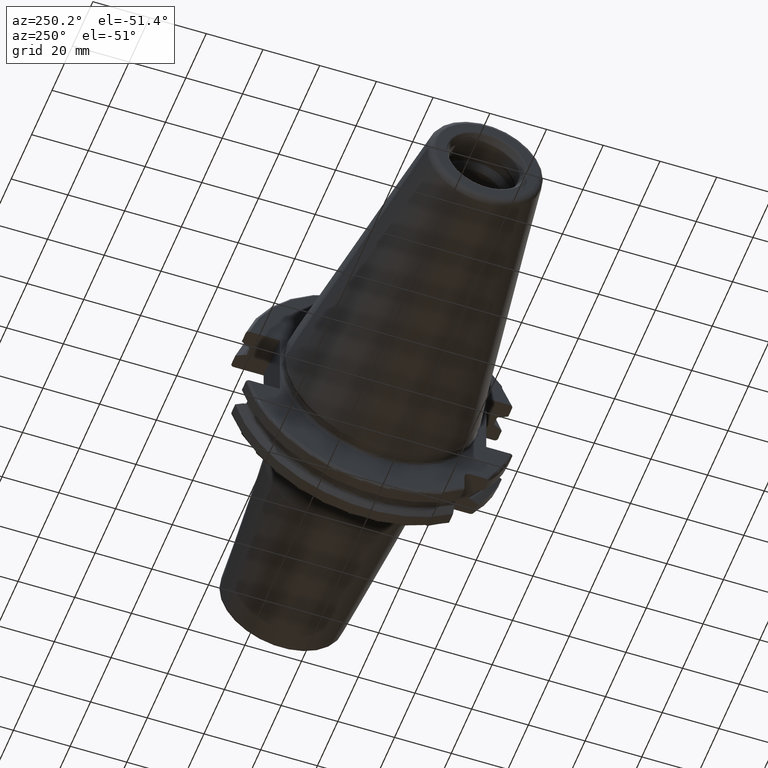
[diagram: clean part render]
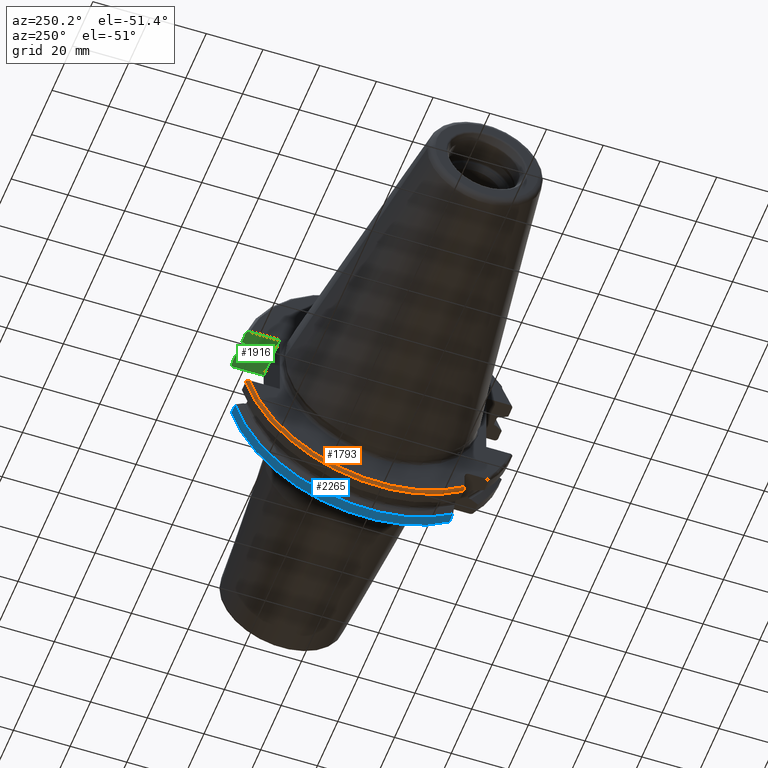
[diagram: same view with three faces highlighted in distinct colors, each labeled with its STEP entity id]
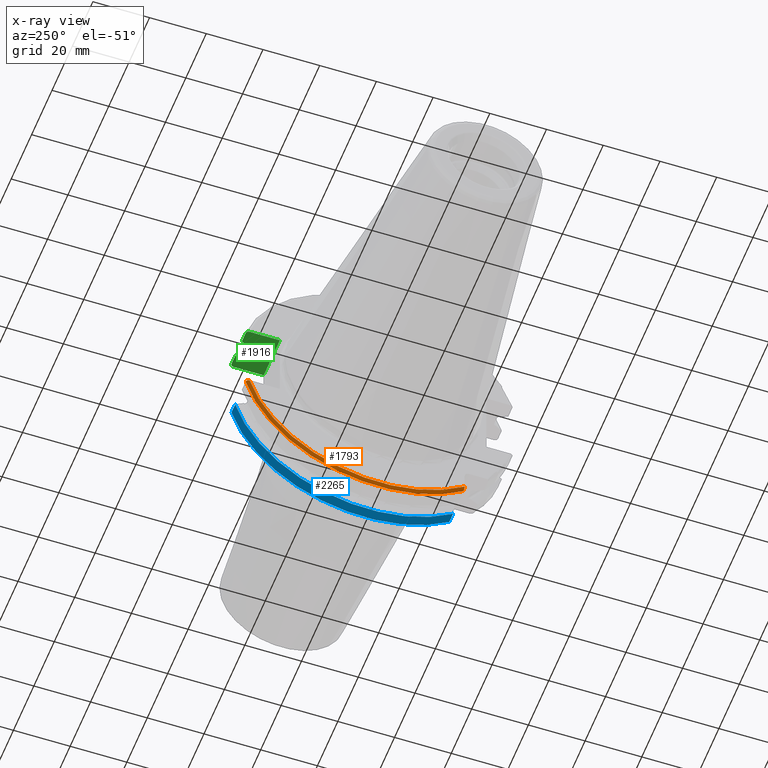
[diagram: x-ray of the same camera — body ghosted, the three highlighted faces saturated]
A machine part, auxiliary view with three faces highlighted in distinct colors.
The next image is the same camera in x-ray (body ghosted, the three faces saturated) — at least one of them is partly hidden behind the body in this view.
Their STEP definitions:

[orange] entity #1793 — the highlighted toroidal blend (fillet) surface has major radius 47.7375 mm and minor (blend) radius 1 mm.
#190=CARTESIAN_POINT('',(3.2E0,0.E0,0.E0));
#191=DIRECTION('',(-1.E0,0.E0,0.E0));
#192=DIRECTION('',(0.E0,9.627964123359E-1,-2.702278083268E-1));
#193=AXIS2_PLACEMENT_3D('',#190,#191,#192);
#237=CARTESIAN_POINT('',(3.2E0,4.596149373389E1,-1.29E1));
#238=CARTESIAN_POINT('',(3.2E0,4.604026443227E1,-1.29E1));
#239=CARTESIAN_POINT('',(3.216813255287E0,4.619328239852E1,-1.29E1));
#240=CARTESIAN_POINT('',(3.290538328370E0,4.641376542139E1,-1.29E1));
#241=CARTESIAN_POINT('',(3.409705660893E0,4.661163928454E1,-1.29E1));
#242=CARTESIAN_POINT('',(3.568375595419E0,4.677744698912E1,-1.29E1));
#243=CARTESIAN_POINT('',(3.759602935675E0,4.690321007119E1,-1.29E1));
#244=CARTESIAN_POINT('',(3.974378910530E0,4.698149887214E1,-1.29E1));
#245=CARTESIAN_POINT('',(4.123284460641E0,4.699929686974E1,-1.29E1));
#246=CARTESIAN_POINT('',(4.2E0,4.699929686974E1,-1.29E1));
#248=CARTESIAN_POINT('',(4.2E0,-2.985E1,-3.852689198793E1));
#249=CARTESIAN_POINT('',(4.121351701574E0,-2.985E1,-3.852689198793E1));
#250=CARTESIAN_POINT('',(3.966904735014E0,-2.985E1,-3.850408165447E1));
#251=CARTESIAN_POINT('',(3.738653969764E0,-2.985E1,-3.839864952437E1));
#252=CARTESIAN_POINT('',(3.529185168070E0,-2.985E1,-3.821837887996E1));
#253=CARTESIAN_POINT('',(3.352580918325E0,-2.985E1,-3.796237987635E1));
#254=CARTESIAN_POINT('',(3.229812788304E0,-2.985E1,-3.762998844337E1));
#255=CARTESIAN_POINT('',(3.2E0,-2.985E1,-3.738468079689E1));
#256=CARTESIAN_POINT('',(3.2E0,-2.985E1,-3.725381062724E1));
#258=CARTESIAN_POINT('',(4.2E0,0.E0,0.E0));
#259=DIRECTION('',(-1.E0,0.E0,0.E0));
#260=DIRECTION('',(0.E0,9.643354064066E-1,-2.646832521159E-1));
#261=AXIS2_PLACEMENT_3D('',#258,#259,#260);
#1362=CARTESIAN_POINT('',(3.2E0,4.596149373389E1,-1.29E1));
#1363=VERTEX_POINT('',#1362);
#1372=CARTESIAN_POINT('',(4.2E0,4.699929686974E1,-1.29E1));
#1373=VERTEX_POINT('',#1372);
#1401=CARTESIAN_POINT('',(4.2E0,-2.985E1,-3.852689198793E1));
#1402=VERTEX_POINT('',#1401);
#1403=CARTESIAN_POINT('',(3.2E0,-2.985E1,-3.725381062724E1));
#1404=VERTEX_POINT('',#1403);
#1780=CARTESIAN_POINT('',(4.2E0,0.E0,0.E0));
#1781=DIRECTION('',(1.E0,0.E0,0.E0));
#1782=DIRECTION('',(0.E0,-1.E0,0.E0));
#1783=AXIS2_PLACEMENT_3D('',#1780,#1781,#1782);
#1784=TOROIDAL_SURFACE('',#1783,4.77375E1,1.E0);
#1786=ORIENTED_EDGE('',*,*,#1785,.F.);
#1787=ORIENTED_EDGE('',*,*,#1723,.T.);
#1788=ORIENTED_EDGE('',*,*,#1693,.F.);
#1790=ORIENTED_EDGE('',*,*,#1789,.F.);
#1791=EDGE_LOOP('',(#1786,#1787,#1788,#1790));
#1792=FACE_OUTER_BOUND('',#1791,.F.);
#1793=ADVANCED_FACE('',(#1792),#1784,.T.);
#194=CIRCLE('',#193,4.77375E1);
#247=B_SPLINE_CURVE_WITH_KNOTS('',3,(#237,#238,#239,#240,#241,#242,#243,#244,
#245,#246),.UNSPECIFIED.,.F.,.F.,(4,1,1,1,1,1,1,4),(0.E0,1.428571428571E-1,
2.857142857143E-1,4.285714285714E-1,5.714285714286E-1,7.142857142857E-1,
8.571428571429E-1,1.E0),.UNSPECIFIED.);
#257=B_SPLINE_CURVE_WITH_KNOTS('',3,(#248,#249,#250,#251,#252,#253,#254,#255,
#256),.UNSPECIFIED.,.F.,.F.,(4,1,1,1,1,1,4),(0.E0,1.666666666667E-1,
3.333333333333E-1,5.E-1,6.666666666667E-1,8.333333333333E-1,1.E0),
.UNSPECIFIED.);
#262=CIRCLE('',#261,4.87375E1);
#1693=EDGE_CURVE('',#1402,#1404,#257,.T.);
#1723=EDGE_CURVE('',#1363,#1404,#194,.T.);
#1785=EDGE_CURVE('',#1363,#1373,#247,.T.);
#1789=EDGE_CURVE('',#1373,#1402,#262,.T.);

[blue] entity #2265 — the highlighted cylindrical surface (partial cylindrical patch) has radius 48.7375 mm, axis along (1, 0, 0).
#736=DIRECTION('',(1.E0,0.E0,0.E0));
#737=VECTOR('',#736,3.634621614173E0);
#738=CARTESIAN_POINT('',(1.441537838583E1,4.699929686974E1,-1.29E1));
#739=LINE('',#738,#737);
#740=CARTESIAN_POINT('',(1.441537838583E1,0.E0,0.E0));
#741=DIRECTION('',(1.E0,0.E0,0.E0));
#742=DIRECTION('',(0.E0,-6.124647345473E-1,-7.904979120376E-1));
#743=AXIS2_PLACEMENT_3D('',#740,#741,#742);
#745=DIRECTION('',(1.E0,0.E0,0.E0));
#746=VECTOR('',#745,3.634621614173E0);
#747=CARTESIAN_POINT('',(1.441537838583E1,-2.985E1,-3.852689198793E1));
#748=LINE('',#747,#746);
#749=CARTESIAN_POINT('',(1.805E1,0.E0,0.E0));
#750=DIRECTION('',(-1.E0,0.E0,0.E0));
#751=DIRECTION('',(0.E0,9.643354064066E-1,-2.646832521159E-1));
#752=AXIS2_PLACEMENT_3D('',#749,#750,#751);
#790=CARTESIAN_POINT('',(1.441537838583E1,4.699929686974E1,-1.29E1));
#802=CARTESIAN_POINT('',(1.441537838583E1,-2.985E1,-3.852689198793E1));
#1324=VERTEX_POINT('',#790);
#1374=CARTESIAN_POINT('',(1.805E1,4.699929686974E1,-1.29E1));
#1375=VERTEX_POINT('',#1374);
#1399=CARTESIAN_POINT('',(1.805E1,-2.985E1,-3.852689198793E1));
#1400=VERTEX_POINT('',#1399);
#1424=VERTEX_POINT('',#802);
#2252=CARTESIAN_POINT('',(-1.076325E2,0.E0,0.E0));
#2253=DIRECTION('',(1.E0,0.E0,0.E0));
#2254=DIRECTION('',(0.E0,-1.E0,0.E0));
#2255=AXIS2_PLACEMENT_3D('',#2252,#2253,#2254);
#2256=CYLINDRICAL_SURFACE('',#2255,4.87375E1);
#2257=ORIENTED_EDGE('',*,*,#1825,.F.);
#2259=ORIENTED_EDGE('',*,*,#2258,.F.);
#2260=ORIENTED_EDGE('',*,*,#1675,.T.);
#2262=ORIENTED_EDGE('',*,*,#2261,.F.);
#2263=EDGE_LOOP('',(#2257,#2259,#2260,#2262));
#2264=FACE_OUTER_BOUND('',#2263,.F.);
#2265=ADVANCED_FACE('',(#2264),#2256,.T.);
#744=CIRCLE('',#743,4.87375E1);
#753=CIRCLE('',#752,4.87375E1);
#1675=EDGE_CURVE('',#1424,#1400,#748,.T.);
#1825=EDGE_CURVE('',#1324,#1375,#739,.T.);
#2258=EDGE_CURVE('',#1424,#1324,#744,.T.);
#2261=EDGE_CURVE('',#1375,#1400,#753,.T.);

[green] entity #1916 — the highlighted planar face has unit normal (0, 0, 1).
#122=DIRECTION('',(-1.E0,0.E0,0.E0));
#123=VECTOR('',#122,1.585E1);
#124=CARTESIAN_POINT('',(1.905E1,3.53E1,1.29E1));
#125=LINE('',#124,#123);
#146=DIRECTION('',(0.E0,-1.E0,0.E0));
#147=VECTOR('',#146,1.066149373389E1);
#148=CARTESIAN_POINT('',(1.905E1,4.596149373389E1,1.29E1));
#149=LINE('',#148,#147);
#207=DIRECTION('',(0.E0,-1.E0,0.E0));
#208=VECTOR('',#207,1.066149373389E1);
#209=CARTESIAN_POINT('',(3.2E0,4.596149373389E1,1.29E1));
#210=LINE('',#209,#208);
#294=DIRECTION('',(0.E0,-1.E0,0.E0));
#295=VECTOR('',#294,1.952643655423E-1);
#296=CARTESIAN_POINT('',(9.2625E0,4.460981716077E1,1.29E1));
#297=LINE('',#296,#295);
#333=CARTESIAN_POINT('',(7.934621614173E0,4.699929686974E1,1.29E1));
#334=CARTESIAN_POINT('',(8.085480915039E0,4.672833723043E1,1.29E1));
#335=CARTESIAN_POINT('',(8.384988643814E0,4.619006057422E1,1.29E1));
#336=CARTESIAN_POINT('',(8.827579780447E0,4.539363402665E1,1.29E1));
#337=CARTESIAN_POINT('',(9.118260754177E0,4.486988275438E1,1.29E1));
#338=CARTESIAN_POINT('',(9.2625E0,4.460981716077E1,1.29E1));
#351=CARTESIAN_POINT('',(1.00125E1,4.363301502303E1,1.29E1));
#352=CARTESIAN_POINT('',(9.954459038642E0,4.363301502303E1,1.29E1));
#353=CARTESIAN_POINT('',(9.841879456025E0,4.364663453854E1,1.29E1));
#354=CARTESIAN_POINT('',(9.679181789370E0,4.370688679607E1,1.29E1));
#355=CARTESIAN_POINT('',(9.535649484354E0,4.380290373946E1,1.29E1));
#356=CARTESIAN_POINT('',(9.417489807997E0,4.392837618076E1,1.29E1));
#357=CARTESIAN_POINT('',(9.329516551915E0,4.407649589532E1,1.29E1));
#358=CARTESIAN_POINT('',(9.274989387756E0,4.424117249764E1,1.29E1));
#359=CARTESIAN_POINT('',(9.2625E0,4.435562679308E1,1.29E1));
#360=CARTESIAN_POINT('',(9.2625E0,4.441455279523E1,1.29E1));
#378=DIRECTION('',(1.E0,0.E0,0.E0));
#379=VECTOR('',#378,2.325E0);
#380=CARTESIAN_POINT('',(1.00125E1,4.363301502303E1,1.29E1));
#381=LINE('',#380,#379);
#391=CARTESIAN_POINT('',(1.30875E1,4.441455279523E1,1.29E1));
#392=CARTESIAN_POINT('',(1.30875E1,4.435557140525E1,1.29E1));
#393=CARTESIAN_POINT('',(1.307499016648E1,4.424100688760E1,1.29E1));
#394=CARTESIAN_POINT('',(1.302032710232E1,4.407610890085E1,1.29E1));
#395=CARTESIAN_POINT('',(1.293214994527E1,4.392788522282E1,1.29E1));
#396=CARTESIAN_POINT('',(1.281390038390E1,4.380253784054E1,1.29E1));
#397=CARTESIAN_POINT('',(1.267050623563E1,4.370675082806E1,1.29E1));
#398=CARTESIAN_POINT('',(1.250801539042E1,4.364662320814E1,1.29E1));
#399=CARTESIAN_POINT('',(1.239551042481E1,4.363301502303E1,1.29E1));
#400=CARTESIAN_POINT('',(1.23375E1,4.363301502303E1,1.29E1));
#418=DIRECTION('',(0.E0,-1.E0,2.729156701685E-14));
#419=VECTOR('',#418,1.952643655423E-1);
#420=CARTESIAN_POINT('',(1.30875E1,4.460981716077E1,1.29E1));
#421=LINE('',#420,#419);
#457=CARTESIAN_POINT('',(1.441537838583E1,4.699929686974E1,1.29E1));
#458=CARTESIAN_POINT('',(1.426451908496E1,4.672833723043E1,1.29E1));
#459=CARTESIAN_POINT('',(1.396501135619E1,4.619006057422E1,1.29E1));
#460=CARTESIAN_POINT('',(1.352242021955E1,4.539363402665E1,1.29E1));
#461=CARTESIAN_POINT('',(1.323173924582E1,4.486988275438E1,1.29E1));
#462=CARTESIAN_POINT('',(1.30875E1,4.460981716077E1,1.29E1));
#476=DIRECTION('',(1.E0,0.E0,0.E0));
#477=VECTOR('',#476,3.734621614173E0);
#478=CARTESIAN_POINT('',(4.2E0,4.699929686974E1,1.29E1));
#479=LINE('',#478,#477);
#489=DIRECTION('',(1.E0,0.E0,0.E0));
#490=VECTOR('',#489,3.634621614173E0);
#491=CARTESIAN_POINT('',(1.441537838583E1,4.699929686974E1,1.29E1));
#492=LINE('',#491,#490);
#507=CARTESIAN_POINT('',(4.2E0,4.699929686974E1,1.29E1));
#508=CARTESIAN_POINT('',(4.123252333679E0,4.699929686974E1,1.29E1));
#509=CARTESIAN_POINT('',(3.974283567116E0,4.698148666181E1,1.29E1));
#510=CARTESIAN_POINT('',(3.759372583830E0,4.690310671304E1,1.29E1));
#511=CARTESIAN_POINT('',(3.568100173391E0,4.677722228850E1,1.29E1));
#512=CARTESIAN_POINT('',(3.409493655806E0,4.661135458292E1,1.29E1));
#513=CARTESIAN_POINT('',(3.290442678355E0,4.641353235870E1,1.29E1));
#514=CARTESIAN_POINT('',(3.216801719921E0,4.619318544857E1,1.29E1));
#515=CARTESIAN_POINT('',(3.2E0,4.604023191736E1,1.29E1));
#516=CARTESIAN_POINT('',(3.2E0,4.596149373389E1,1.29E1));
#534=CARTESIAN_POINT('',(1.905E1,4.596149373389E1,1.29E1));
#535=CARTESIAN_POINT('',(1.905E1,4.604025341545E1,1.29E1));
#536=CARTESIAN_POINT('',(1.903319704314E1,4.619325673207E1,1.29E1));
#537=CARTESIAN_POINT('',(1.895943574721E1,4.641382557540E1,1.29E1));
#538=CARTESIAN_POINT('',(1.884029019608E1,4.661163569902E1,1.29E1));
#539=CARTESIAN_POINT('',(1.868162992187E1,4.677744958982E1,1.29E1));
#540=CARTESIAN_POINT('',(1.849033887272E1,4.690323680095E1,1.29E1));
#541=CARTESIAN_POINT('',(1.827565953653E1,4.698148434228E1,1.29E1));
#542=CARTESIAN_POINT('',(1.812673203795E1,4.699929686974E1,1.29E1));
#543=CARTESIAN_POINT('',(1.805E1,4.699929686974E1,1.29E1));
#1278=CARTESIAN_POINT('',(9.2625E0,4.460981716077E1,1.29E1));
#1279=CARTESIAN_POINT('',(9.2625E0,4.441455279523E1,1.29E1));
#1280=VERTEX_POINT('',#1278);
#1281=VERTEX_POINT('',#1279);
#1294=VERTEX_POINT('',#351);
#1296=CARTESIAN_POINT('',(1.23375E1,4.363301502303E1,1.29E1));
#1297=VERTEX_POINT('',#1296);
#1300=VERTEX_POINT('',#391);
#1302=CARTESIAN_POINT('',(1.30875E1,4.460981716077E1,1.29E1));
#1303=VERTEX_POINT('',#1302);
#1314=VERTEX_POINT('',#457);
#1316=VERTEX_POINT('',#333);
#1328=CARTESIAN_POINT('',(1.905E1,4.596149373389E1,1.29E1));
#1329=CARTESIAN_POINT('',(1.905E1,3.53E1,1.29E1));
#1330=VERTEX_POINT('',#1328);
#1331=VERTEX_POINT('',#1329);
#1344=CARTESIAN_POINT('',(4.2E0,4.699929686974E1,1.29E1));
#1345=VERTEX_POINT('',#1344);
#1346=CARTESIAN_POINT('',(1.805E1,4.699929686974E1,1.29E1));
#1347=VERTEX_POINT('',#1346);
#1352=CARTESIAN_POINT('',(3.2E0,4.596149373389E1,1.29E1));
#1353=CARTESIAN_POINT('',(3.2E0,3.53E1,1.29E1));
#1354=VERTEX_POINT('',#1352);
#1355=VERTEX_POINT('',#1353);
#1885=CARTESIAN_POINT('',(1.905E1,5.03E1,1.29E1));
#1886=DIRECTION('',(0.E0,0.E0,1.E0));
#1887=DIRECTION('',(0.E0,-1.E0,0.E0));
#1888=AXIS2_PLACEMENT_3D('',#1885,#1886,#1887);
#1889=PLANE('',#1888);
#1890=ORIENTED_EDGE('',*,*,#1845,.F.);
#1892=ORIENTED_EDGE('',*,*,#1891,.F.);
#1894=ORIENTED_EDGE('',*,*,#1893,.F.);
#1896=ORIENTED_EDGE('',*,*,#1895,.T.);
#1897=ORIENTED_EDGE('',*,*,#1732,.T.);
#1898=ORIENTED_EDGE('',*,*,#1614,.F.);
#1899=ORIENTED_EDGE('',*,*,#1649,.F.);
#1901=ORIENTED_EDGE('',*,*,#1900,.T.);
#1903=ORIENTED_EDGE('',*,*,#1902,.F.);
#1905=ORIENTED_EDGE('',*,*,#1904,.T.);
#1907=ORIENTED_EDGE('',*,*,#1906,.T.);
#1909=ORIENTED_EDGE('',*,*,#1908,.T.);
#1911=ORIENTED_EDGE('',*,*,#1910,.F.);
#1913=ORIENTED_EDGE('',*,*,#1912,.T.);
#1914=EDGE_LOOP('',(#1890,#1892,#1894,#1896,#1897,#1898,#1899,#1901,#1903,#1905,
#1907,#1909,#1911,#1913));
#1915=FACE_OUTER_BOUND('',#1914,.F.);
#1916=ADVANCED_FACE('',(#1915),#1889,.F.);
#339=B_SPLINE_CURVE_WITH_KNOTS('',3,(#333,#334,#335,#336,#337,#338),
.UNSPECIFIED.,.F.,.F.,(4,1,1,4),(0.E0,3.333333333333E-1,6.666666666667E-1,1.E0),
.UNSPECIFIED.);
#361=B_SPLINE_CURVE_WITH_KNOTS('',3,(#351,#352,#353,#354,#355,#356,#357,#358,
#359,#360),.UNSPECIFIED.,.F.,.F.,(4,1,1,1,1,1,1,4),(0.E0,1.428571428571E-1,
2.857142857143E-1,4.285714285714E-1,5.714285714286E-1,7.142857142857E-1,
8.571428571429E-1,1.E0),.UNSPECIFIED.);
#401=B_SPLINE_CURVE_WITH_KNOTS('',3,(#391,#392,#393,#394,#395,#396,#397,#398,
#399,#400),.UNSPECIFIED.,.F.,.F.,(4,1,1,1,1,1,1,4),(0.E0,1.428571428571E-1,
2.857142857143E-1,4.285714285714E-1,5.714285714286E-1,7.142857142857E-1,
8.571428571429E-1,1.E0),.UNSPECIFIED.);
#463=B_SPLINE_CURVE_WITH_KNOTS('',3,(#457,#458,#459,#460,#461,#462),
.UNSPECIFIED.,.F.,.F.,(4,1,1,4),(0.E0,3.333333333333E-1,6.666666666667E-1,1.E0),
.UNSPECIFIED.);
#517=B_SPLINE_CURVE_WITH_KNOTS('',3,(#507,#508,#509,#510,#511,#512,#513,#514,
#515,#516),.UNSPECIFIED.,.F.,.F.,(4,1,1,1,1,1,1,4),(0.E0,1.428571428571E-1,
2.857142857143E-1,4.285714285714E-1,5.714285714286E-1,7.142857142857E-1,
8.571428571429E-1,1.E0),.UNSPECIFIED.);
#544=B_SPLINE_CURVE_WITH_KNOTS('',3,(#534,#535,#536,#537,#538,#539,#540,#541,
#542,#543),.UNSPECIFIED.,.F.,.F.,(4,1,1,1,1,1,1,4),(0.E0,1.428571428571E-1,
2.857142857143E-1,4.285714285714E-1,5.714285714286E-1,7.142857142857E-1,
8.571428571429E-1,1.E0),.UNSPECIFIED.);
#1614=EDGE_CURVE('',#1331,#1355,#125,.T.);
#1649=EDGE_CURVE('',#1330,#1331,#149,.T.);
#1732=EDGE_CURVE('',#1354,#1355,#210,.T.);
#1845=EDGE_CURVE('',#1280,#1281,#297,.T.);
#1891=EDGE_CURVE('',#1316,#1280,#339,.T.);
#1893=EDGE_CURVE('',#1345,#1316,#479,.T.);
#1895=EDGE_CURVE('',#1345,#1354,#517,.T.);
#1900=EDGE_CURVE('',#1330,#1347,#544,.T.);
#1902=EDGE_CURVE('',#1314,#1347,#492,.T.);
#1904=EDGE_CURVE('',#1314,#1303,#463,.T.);
#1906=EDGE_CURVE('',#1303,#1300,#421,.T.);
#1908=EDGE_CURVE('',#1300,#1297,#401,.T.);
#1910=EDGE_CURVE('',#1294,#1297,#381,.T.);
#1912=EDGE_CURVE('',#1294,#1281,#361,.T.);